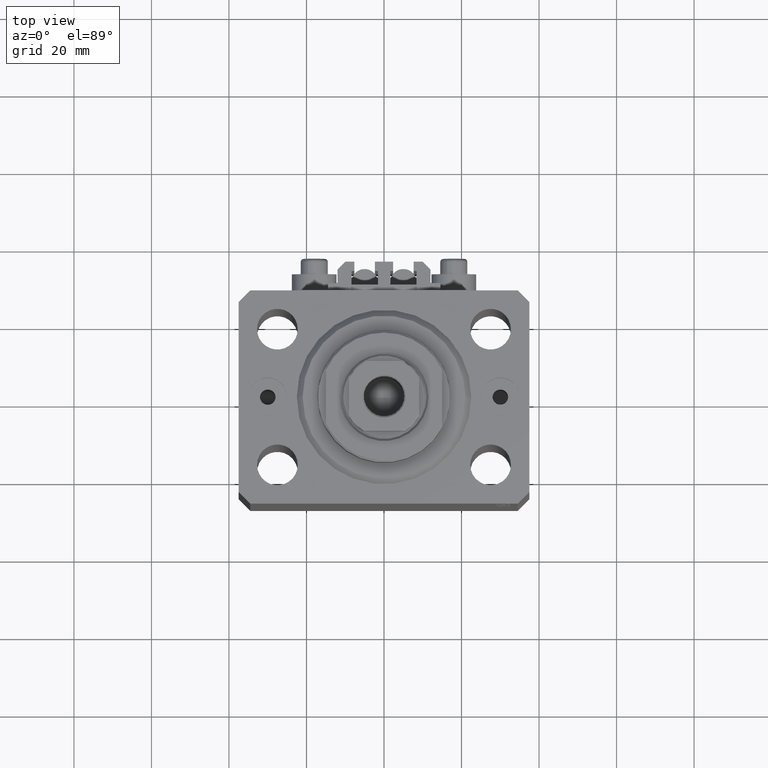
[diagram: clean part render]
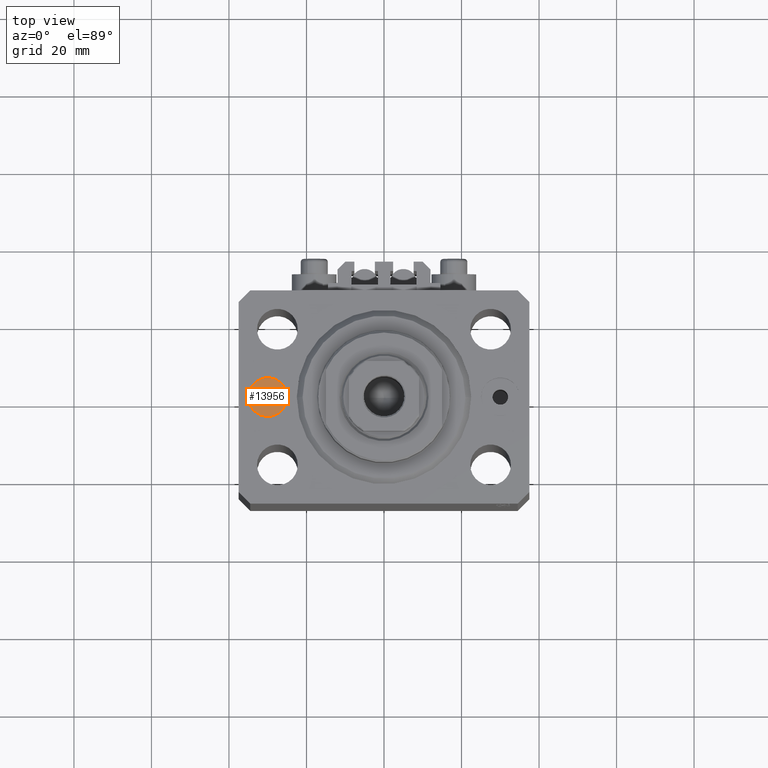
[diagram: same view with one face highlighted and labeled with its STEP entity id]
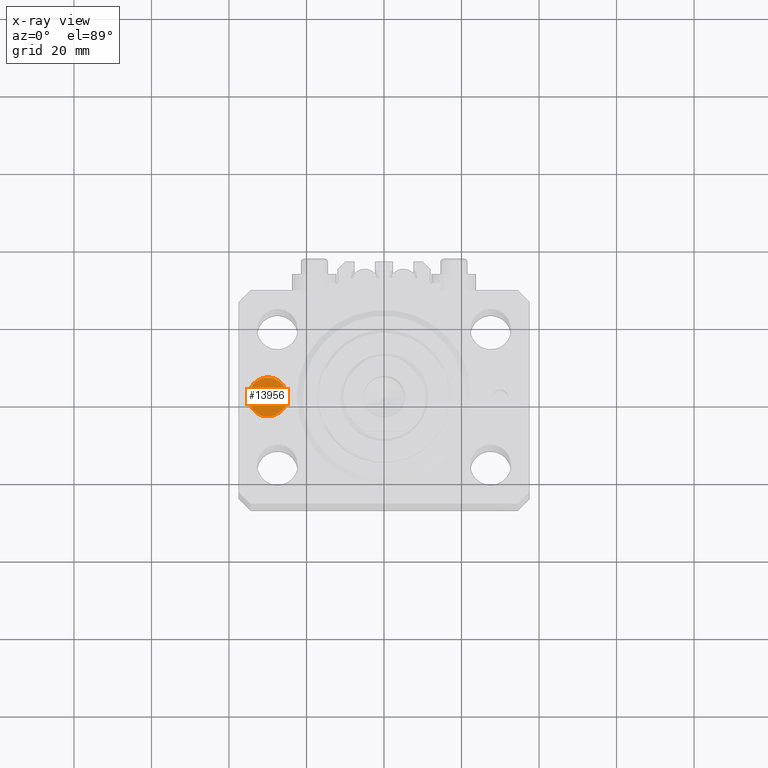
[diagram: x-ray of the same camera — body ghosted, the highlighted face saturated]
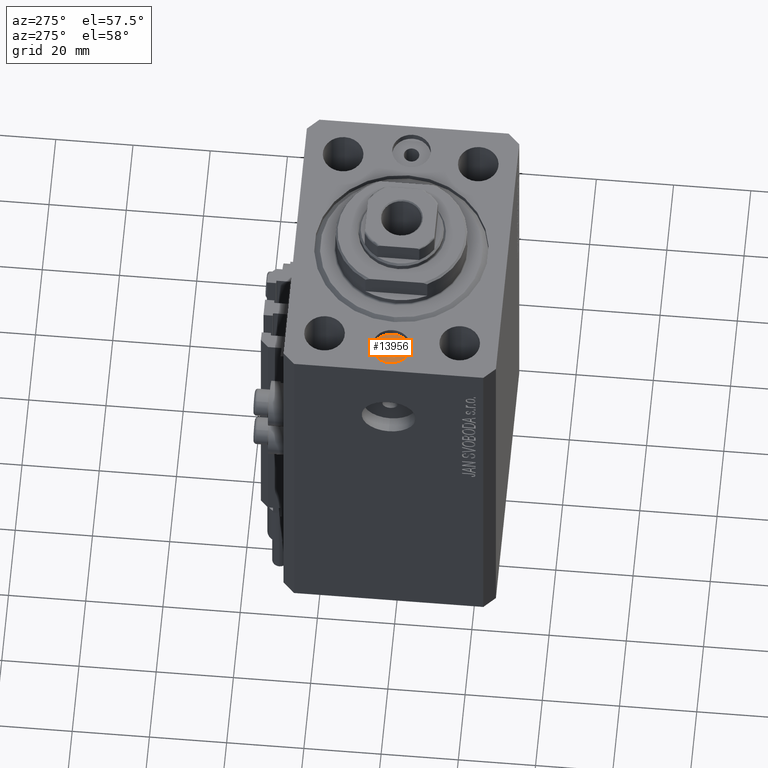
[diagram: same view with one face highlighted and labeled with its STEP entity id]
A machine part, top view. The second image highlights one B-rep face of the part: STEP entity #13956.
The next image is the same camera in x-ray: the body ghosted, the highlighted face saturated — about 0% of this face is hidden behind the body in this view.
A second angle (auxiliary view) of the same face is appended — the face is thin or edge-on in the first view.
In plain terms, the highlighted planar face has unit normal (0, 0, 1).
Its self-contained STEP definition (entity closure, byte-faithful):
#1552 = PLANE ( 'NONE',  #42901 ) ;
#1570 = DIRECTION ( 'NONE',  ( 1.000000000000000000, 0.000000000000000000, 0.000000000000000000 ) ) ;
#4996 = EDGE_CURVE ( 'NONE', #7366, #29767, #41815, .T. ) ;
#5078 = DIRECTION ( 'NONE',  ( 0.000000000000000000, 0.000000000000000000, 1.000000000000000000 ) ) ;
#6867 = CARTESIAN_POINT ( 'NONE',  ( -34.99999999999999289, 6.123233995736768255E-16, -1.899999999999999911 ) ) ;
#7366 = VERTEX_POINT ( 'NONE', #13831 ) ;
#8245 = CIRCLE ( 'NONE', #41624, 1.999999999999998224 ) ;
#8246 = EDGE_LOOP ( 'NONE', ( #24628, #23063 ) ) ;
#8861 = CARTESIAN_POINT ( 'NONE',  ( -30.00000000000000000, 0.000000000000000000, -1.899999999999999911 ) ) ;
#9800 = DIRECTION ( 'NONE',  ( 1.000000000000000000, 0.000000000000000000, -0.000000000000000000 ) ) ;
#10931 = EDGE_CURVE ( 'NONE', #29767, #7366, #24904, .T. ) ;
#12485 = FACE_BOUND ( 'NONE', #8246, .T. ) ;
#12725 = FACE_OUTER_BOUND ( 'NONE', #19145, .T. ) ;
#13274 = CARTESIAN_POINT ( 'NONE',  ( -28.00000000000000000, 0.000000000000000000, -1.899999999999999911 ) ) ;
#13831 = CARTESIAN_POINT ( 'NONE',  ( -24.99999999999999645, 0.000000000000000000, -1.899999999999999911 ) ) ;
#13956 = ADVANCED_FACE ( 'NONE', ( #12485, #12725 ), #1552, .T. ) ;
#14414 = VERTEX_POINT ( 'NONE', #20314 ) ;
#14643 = CARTESIAN_POINT ( 'NONE',  ( -30.00000000000000000, 0.000000000000000000, -1.899999999999999911 ) ) ;
#16555 = ORIENTED_EDGE ( 'NONE', *, *, #10931, .T. ) ;
#18745 = CARTESIAN_POINT ( 'NONE',  ( -30.00000000000000000, 0.000000000000000000, -1.899999999999999911 ) ) ;
#19145 = EDGE_LOOP ( 'NONE', ( #25282, #16555 ) ) ;
#20314 = CARTESIAN_POINT ( 'NONE',  ( -32.00000000000000000, 2.449293598294701977E-16, -1.899999999999999911 ) ) ;
#20846 = AXIS2_PLACEMENT_3D ( 'NONE', #42255, #5078, #31303 ) ;
#22877 = DIRECTION ( 'NONE',  ( 1.000000000000000000, 0.000000000000000000, 0.000000000000000000 ) ) ;
#23063 = ORIENTED_EDGE ( 'NONE', *, *, #41363, .F. ) ;
#24628 = ORIENTED_EDGE ( 'NONE', *, *, #26074, .F. ) ;
#24904 = CIRCLE ( 'NONE', #42761, 5.000000000000000888 ) ;
#25282 = ORIENTED_EDGE ( 'NONE', *, *, #4996, .T. ) ;
#25559 = CIRCLE ( 'NONE', #28669, 1.999999999999998224 ) ;
#26074 = EDGE_CURVE ( 'NONE', #31052, #14414, #8245, .T. ) ;
#27305 = CARTESIAN_POINT ( 'NONE',  ( -30.00000000000000000, 0.000000000000000000, -1.899999999999999911 ) ) ;
#28669 = AXIS2_PLACEMENT_3D ( 'NONE', #14643, #33106, #34067 ) ;
#29767 = VERTEX_POINT ( 'NONE', #6867 ) ;
#31052 = VERTEX_POINT ( 'NONE', #13274 ) ;
#31303 = DIRECTION ( 'NONE',  ( 1.000000000000000000, 0.000000000000000000, 0.000000000000000000 ) ) ;
#33106 = DIRECTION ( 'NONE',  ( 0.000000000000000000, 0.000000000000000000, 1.000000000000000000 ) ) ;
#34067 = DIRECTION ( 'NONE',  ( 1.000000000000000000, 0.000000000000000000, 0.000000000000000000 ) ) ;
#37606 = DIRECTION ( 'NONE',  ( 0.000000000000000000, 0.000000000000000000, 1.000000000000000000 ) ) ;
#41363 = EDGE_CURVE ( 'NONE', #14414, #31052, #25559, .T. ) ;
#41624 = AXIS2_PLACEMENT_3D ( 'NONE', #8861, #37606, #1570 ) ;
#41815 = CIRCLE ( 'NONE', #20846, 5.000000000000000888 ) ;
#41828 = DIRECTION ( 'NONE',  ( 0.000000000000000000, 0.000000000000000000, 1.000000000000000000 ) ) ;
#42255 = CARTESIAN_POINT ( 'NONE',  ( -30.00000000000000000, 0.000000000000000000, -1.899999999999999911 ) ) ;
#42761 = AXIS2_PLACEMENT_3D ( 'NONE', #18745, #41828, #22877 ) ;
#42901 = AXIS2_PLACEMENT_3D ( 'NONE', #27305, #43096, #9800 ) ;
#43096 = DIRECTION ( 'NONE',  ( 0.000000000000000000, 0.000000000000000000, 1.000000000000000000 ) ) ;